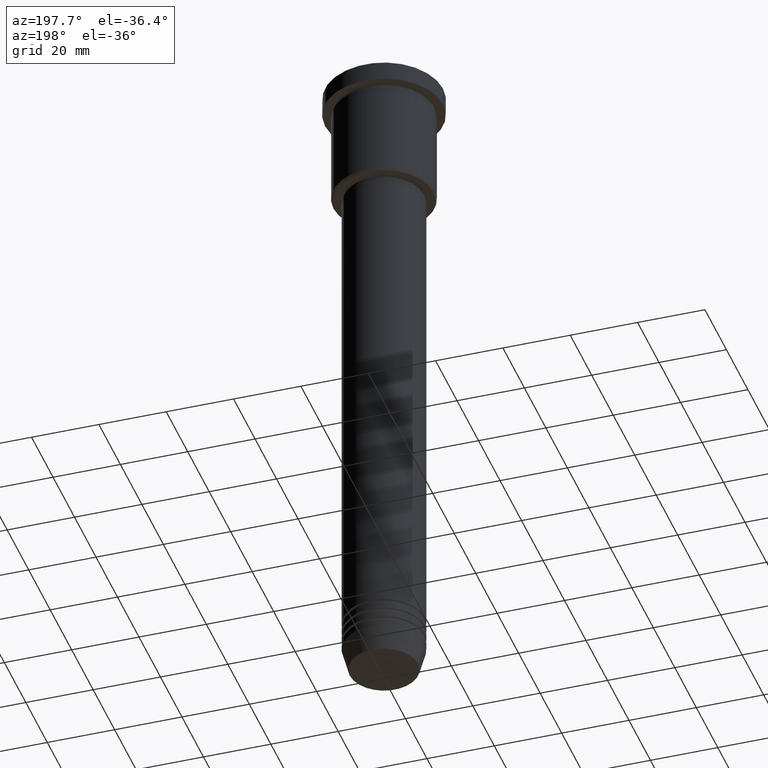
[diagram: clean part render]
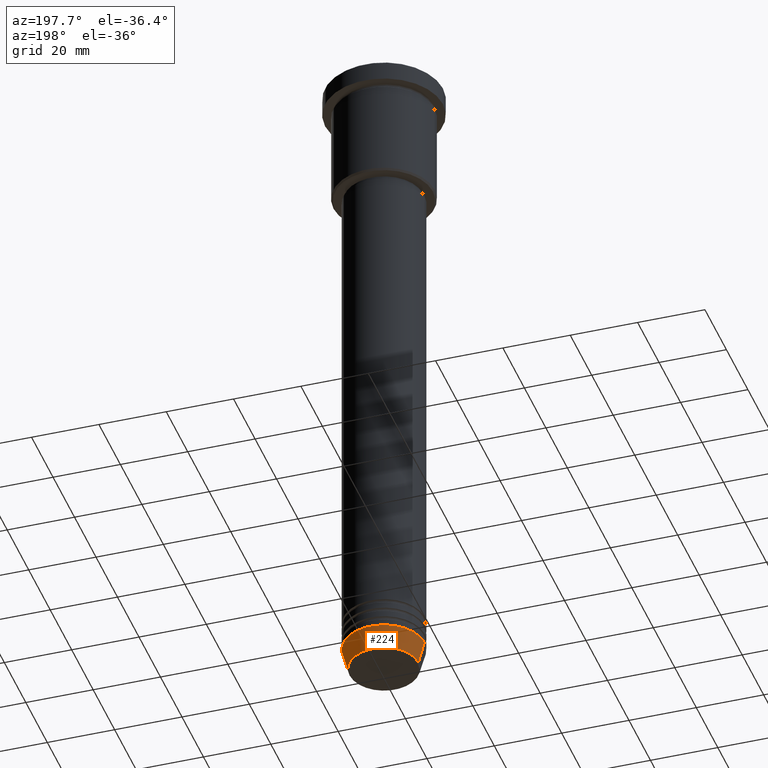
[diagram: same view with one face highlighted and labeled with its STEP entity id]
A machine part, auxiliary view. The second image highlights one B-rep face of the part: STEP entity #224.
In plain terms, the highlighted conical surface has half-angle 15 deg.
Its self-contained STEP definition (entity closure, byte-faithful):
#6 = CIRCLE ( 'NONE', #372, 10.22365507213719660 ) ;
#9 = AXIS2_PLACEMENT_3D ( 'NONE', #820, #1182, #440 ) ;
#87 = VECTOR ( 'NONE', #461, 1000.000000000000000 ) ;
#111 = CONICAL_SURFACE ( 'NONE', #825, 12.00000000000000000, 0.2617993877991500740 ) ;
#117 = CARTESIAN_POINT ( 'NONE',  ( 12.00000000000000000, 0.000000000000000000, -194.0000000000000284 ) ) ;
#205 = DIRECTION ( 'NONE',  ( 1.000000000000000000, 0.000000000000000000, 0.000000000000000000 ) ) ;
#224 = ADVANCED_FACE ( 'NONE', ( #690 ), #111, .T. ) ;
#233 = VECTOR ( 'NONE', #850, 1000.000000000000000 ) ;
#244 = CARTESIAN_POINT ( 'NONE',  ( -12.00000000000000000, 1.469576158976823947E-15, -194.0000000000000284 ) ) ;
#254 = DIRECTION ( 'NONE',  ( -0.000000000000000000, -0.000000000000000000, 1.000000000000000000 ) ) ;
#260 = ORIENTED_EDGE ( 'NONE', *, *, #921, .T. ) ;
#303 = DIRECTION ( 'NONE',  ( -0.000000000000000000, -0.000000000000000000, 1.000000000000000000 ) ) ;
#372 = AXIS2_PLACEMENT_3D ( 'NONE', #934, #303, #205 ) ;
#392 = ORIENTED_EDGE ( 'NONE', *, *, #583, .F. ) ;
#408 = EDGE_CURVE ( 'NONE', #525, #490, #680, .T. ) ;
#412 = LINE ( 'NONE', #244, #233 ) ;
#428 = DIRECTION ( 'NONE',  ( 1.000000000000000000, 0.000000000000000000, 0.000000000000000000 ) ) ;
#440 = DIRECTION ( 'NONE',  ( 1.000000000000000000, 0.000000000000000000, 0.000000000000000000 ) ) ;
#443 = CARTESIAN_POINT ( 'NONE',  ( -10.22365507213719837, 1.360806402472383336E-15, -200.6294095225512990 ) ) ;
#461 = DIRECTION ( 'NONE',  ( 0.2588190451025213501, 0.000000000000000000, 0.9659258262890680902 ) ) ;
#490 = VERTEX_POINT ( 'NONE', #1122 ) ;
#492 = VERTEX_POINT ( 'NONE', #1028 ) ;
#525 = VERTEX_POINT ( 'NONE', #117 ) ;
#583 = EDGE_CURVE ( 'NONE', #492, #525, #836, .T. ) ;
#596 = CARTESIAN_POINT ( 'NONE',  ( 0.000000000000000000, 0.000000000000000000, -194.0000000000000284 ) ) ;
#672 = CARTESIAN_POINT ( 'NONE',  ( 12.00000000000000000, 0.000000000000000000, -194.0000000000000284 ) ) ;
#680 = CIRCLE ( 'NONE', #9, 12.00000000000000000 ) ;
#690 = FACE_OUTER_BOUND ( 'NONE', #877, .T. ) ;
#716 = ORIENTED_EDGE ( 'NONE', *, *, #408, .F. ) ;
#751 = ORIENTED_EDGE ( 'NONE', *, *, #1012, .T. ) ;
#755 = VERTEX_POINT ( 'NONE', #443 ) ;
#820 = CARTESIAN_POINT ( 'NONE',  ( 0.000000000000000000, 0.000000000000000000, -194.0000000000000284 ) ) ;
#825 = AXIS2_PLACEMENT_3D ( 'NONE', #596, #254, #428 ) ;
#836 = LINE ( 'NONE', #672, #87 ) ;
#850 = DIRECTION ( 'NONE',  ( -0.2588190451025213501, 3.169619151431772337E-17, 0.9659258262890680902 ) ) ;
#877 = EDGE_LOOP ( 'NONE', ( #260, #751, #716, #392 ) ) ;
#921 = EDGE_CURVE ( 'NONE', #492, #755, #6, .T. ) ;
#934 = CARTESIAN_POINT ( 'NONE',  ( 0.000000000000000000, 0.000000000000000000, -200.6294095225512990 ) ) ;
#1012 = EDGE_CURVE ( 'NONE', #755, #490, #412, .T. ) ;
#1028 = CARTESIAN_POINT ( 'NONE',  ( 10.22365507213719660, 0.000000000000000000, -200.6294095225512990 ) ) ;
#1122 = CARTESIAN_POINT ( 'NONE',  ( -12.00000000000000000, 1.469576158976823947E-15, -194.0000000000000284 ) ) ;
#1182 = DIRECTION ( 'NONE',  ( -0.000000000000000000, -0.000000000000000000, 1.000000000000000000 ) ) ;